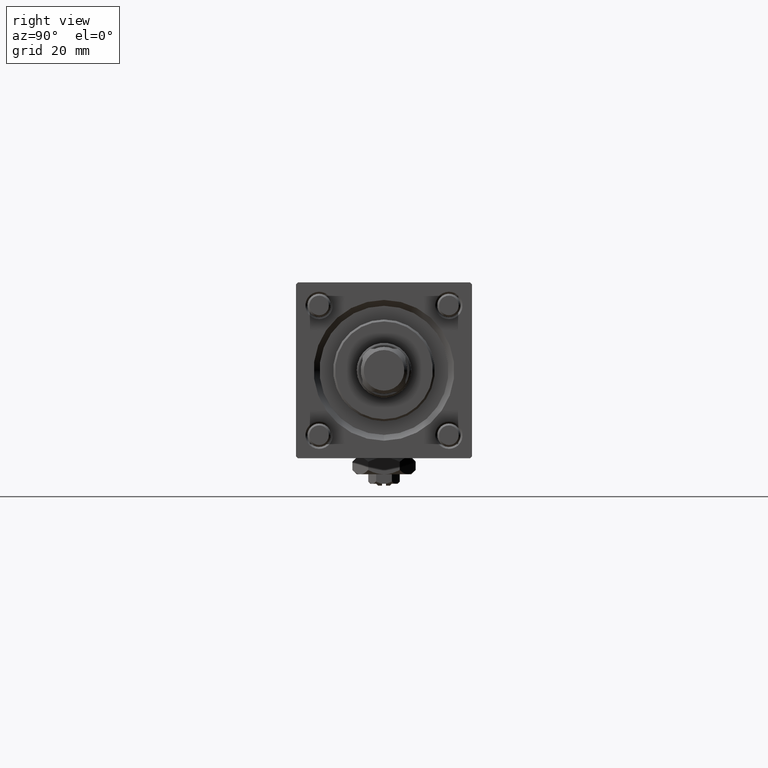
[diagram: clean part render]
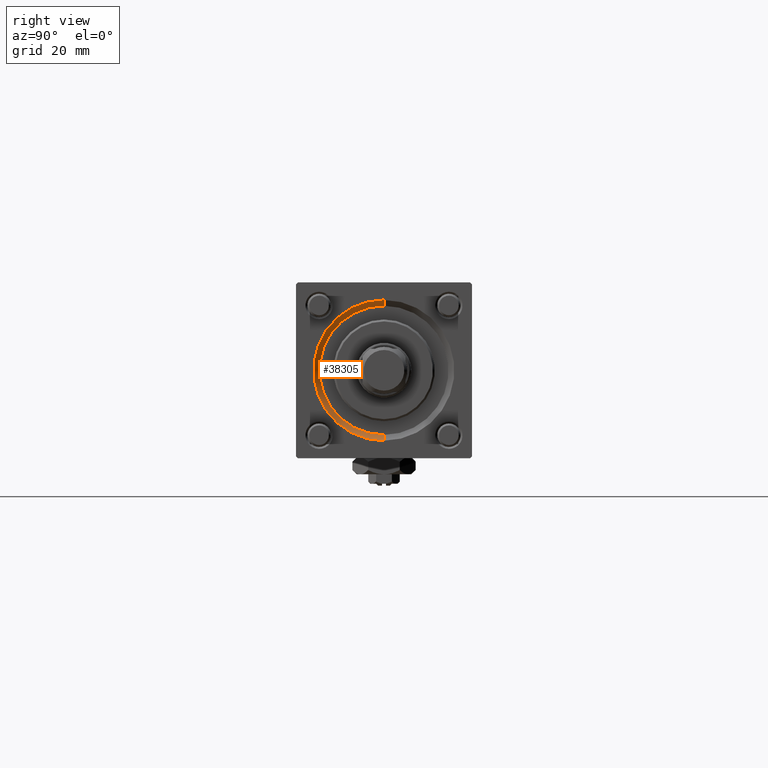
[diagram: same view with one face highlighted and labeled with its STEP entity id]
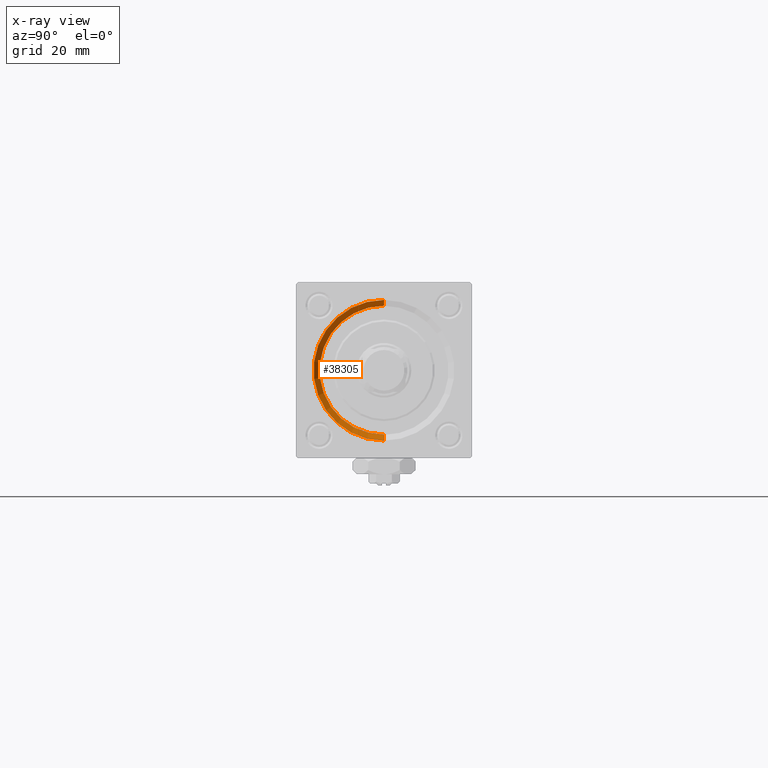
[diagram: x-ray of the same camera — body ghosted, the highlighted face saturated]
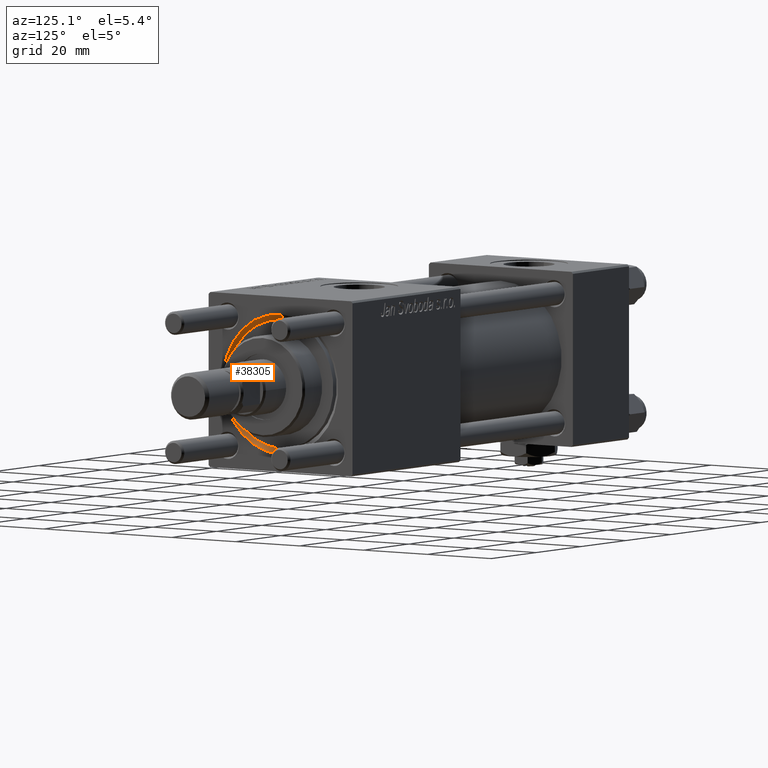
[diagram: same view with one face highlighted and labeled with its STEP entity id]
A machine part, right view. The second image highlights one B-rep face of the part: STEP entity #38305.
The next image is the same camera in x-ray: the body ghosted, the highlighted face saturated — about 0% of this face is hidden behind the body in this view.
A second angle (auxiliary view) of the same face is appended — the face is thin or edge-on in the first view.
In plain terms, the highlighted conical surface has half-angle 45 deg.
Its self-contained STEP definition (entity closure, byte-faithful):
#1921 = EDGE_CURVE ( 'NONE', #3311, #11403, #57506, .T. ) ;
#2590 = CARTESIAN_POINT ( 'NONE',  ( 121.5000000000000142, 0.000000000000000000, -16.50000000000000000 ) ) ;
#3311 = VERTEX_POINT ( 'NONE', #53425 ) ;
#7082 = LINE ( 'NONE', #2590, #21142 ) ;
#7509 = CARTESIAN_POINT ( 'NONE',  ( 121.5000000000000142, 0.000000000000000000, -16.50000000000000000 ) ) ;
#10741 = CARTESIAN_POINT ( 'NONE',  ( 123.0000000000000142, 0.000000000000000000, 0.000000000000000000 ) ) ;
#11403 = VERTEX_POINT ( 'NONE', #13648 ) ;
#11709 = CARTESIAN_POINT ( 'NONE',  ( 123.0000000000000142, 0.000000000000000000, -18.00000000000000355 ) ) ;
#13648 = CARTESIAN_POINT ( 'NONE',  ( 123.0000000000000142, 2.204364238465235822E-15, 18.00000000000000355 ) ) ;
#15131 = FACE_OUTER_BOUND ( 'NONE', #22470, .T. ) ;
#15578 = CIRCLE ( 'NONE', #27108, 16.50000000000000000 ) ;
#16476 = ORIENTED_EDGE ( 'NONE', *, *, #19032, .F. ) ;
#19032 = EDGE_CURVE ( 'NONE', #3311, #52426, #15578, .T. ) ;
#21142 = VECTOR ( 'NONE', #43161, 1000.000000000000114 ) ;
#21373 = EDGE_CURVE ( 'NONE', #58273, #11403, #38507, .T. ) ;
#22470 = EDGE_LOOP ( 'NONE', ( #16476, #29883, #51255, #49094 ) ) ;
#27108 = AXIS2_PLACEMENT_3D ( 'NONE', #36541, #49034, #49646 ) ;
#27772 = DIRECTION ( 'NONE',  ( -1.000000000000000000, 0.000000000000000000, -0.000000000000000000 ) ) ;
#28294 = AXIS2_PLACEMENT_3D ( 'NONE', #41955, #50920, #45848 ) ;
#29883 = ORIENTED_EDGE ( 'NONE', *, *, #1921, .T. ) ;
#36541 = CARTESIAN_POINT ( 'NONE',  ( 121.5000000000000142, 0.000000000000000000, 0.000000000000000000 ) ) ;
#38305 = ADVANCED_FACE ( 'NONE', ( #15131 ), #48258, .F. ) ;
#38507 = CIRCLE ( 'NONE', #43220, 18.00000000000000355 ) ;
#41955 = CARTESIAN_POINT ( 'NONE',  ( 121.5000000000000142, 0.000000000000000000, 0.000000000000000000 ) ) ;
#43161 = DIRECTION ( 'NONE',  ( 0.7071067811865474617, 0.000000000000000000, -0.7071067811865474617 ) ) ;
#43220 = AXIS2_PLACEMENT_3D ( 'NONE', #10741, #27772, #46535 ) ;
#45848 = DIRECTION ( 'NONE',  ( 0.000000000000000000, 0.000000000000000000, -1.000000000000000000 ) ) ;
#46535 = DIRECTION ( 'NONE',  ( 0.000000000000000000, 0.000000000000000000, 1.000000000000000000 ) ) ;
#47962 = CARTESIAN_POINT ( 'NONE',  ( 121.5000000000000142, 2.020667218593133100E-15, 16.50000000000000000 ) ) ;
#48258 = CONICAL_SURFACE ( 'NONE', #28294, 16.50000000000000000, 0.7853981633974482790 ) ;
#49034 = DIRECTION ( 'NONE',  ( 1.000000000000000000, 0.000000000000000000, 0.000000000000000000 ) ) ;
#49094 = ORIENTED_EDGE ( 'NONE', *, *, #58555, .F. ) ;
#49646 = DIRECTION ( 'NONE',  ( 0.000000000000000000, 0.000000000000000000, 1.000000000000000000 ) ) ;
#50920 = DIRECTION ( 'NONE',  ( 1.000000000000000000, 0.000000000000000000, 0.000000000000000000 ) ) ;
#51255 = ORIENTED_EDGE ( 'NONE', *, *, #21373, .F. ) ;
#52426 = VERTEX_POINT ( 'NONE', #7509 ) ;
#53315 = DIRECTION ( 'NONE',  ( 0.7071067811865474617, 8.659560562354932858E-17, 0.7071067811865474617 ) ) ;
#53425 = CARTESIAN_POINT ( 'NONE',  ( 121.5000000000000142, 2.020667218593133100E-15, 16.50000000000000000 ) ) ;
#54318 = VECTOR ( 'NONE', #53315, 1000.000000000000114 ) ;
#57506 = LINE ( 'NONE', #47962, #54318 ) ;
#58273 = VERTEX_POINT ( 'NONE', #11709 ) ;
#58555 = EDGE_CURVE ( 'NONE', #52426, #58273, #7082, .T. ) ;